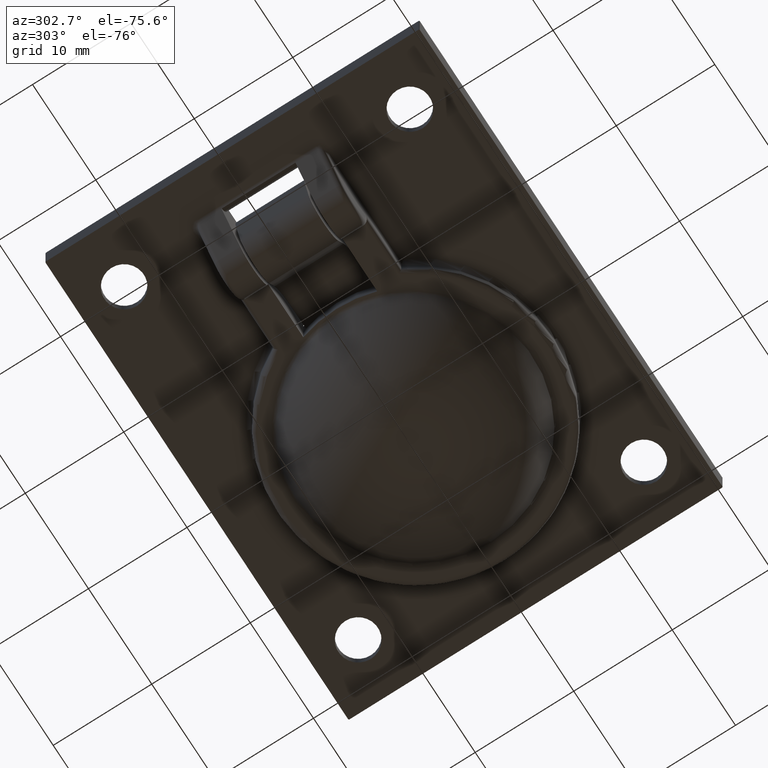
[diagram: clean part render]
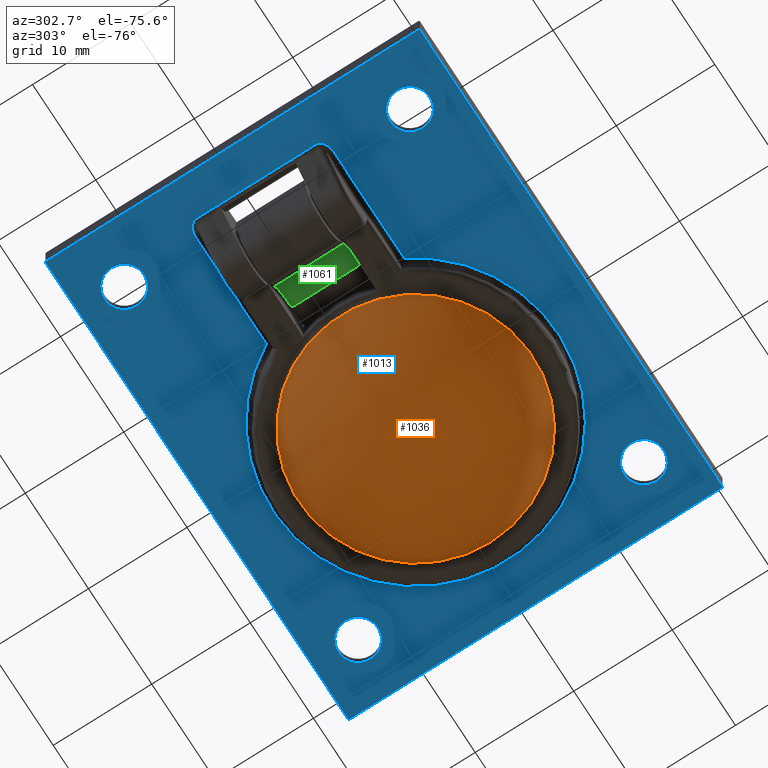
[diagram: same view with three faces highlighted in distinct colors, each labeled with its STEP entity id]
A machine part, auxiliary view with three faces highlighted in distinct colors.
Their STEP definitions:

[orange] entity #1036 — the highlighted spherical surface has radius 13.35 mm.
#25=SPHERICAL_SURFACE('',#1137,13.35);
#127=FACE_OUTER_BOUND('',#198,.T.);
#198=EDGE_LOOP('',(#825));
#426=CIRCLE('',#1136,11.8641822306835);
#511=VERTEX_POINT('',#1817);
#635=EDGE_CURVE('',#511,#511,#426,.T.);
#825=ORIENTED_EDGE('',*,*,#635,.F.);
#1036=ADVANCED_FACE('',(#127),#25,.T.);
#1136=AXIS2_PLACEMENT_3D('',#1818,#1365,#1366);
#1137=AXIS2_PLACEMENT_3D('',#1819,#1367,#1368);
#1365=DIRECTION('center_axis',(0.,0.,1.));
#1366=DIRECTION('ref_axis',(-1.,1.83697019872103E-16,0.));
#1367=DIRECTION('center_axis',(6.65302187041292E-17,0.,1.));
#1368=DIRECTION('ref_axis',(1.,0.,0.));
#1817=CARTESIAN_POINT('',(16.8641822306836,-7.26471639665376E-16,-2.27075812274368));
#1818=CARTESIAN_POINT('Origin',(5.00000000000001,0.,-2.27075812274368));
#1819=CARTESIAN_POINT('Origin',(5.00000000000001,0.,3.85));

[blue] entity #1013 — the highlighted planar face has unit normal (0, 0, 1).
#44=ELLIPSE('',#1092,1.31582577148024,1.);
#45=ELLIPSE('',#1094,1.31582577148024,1.);
#48=FACE_BOUND('',#169,.T.);
#49=FACE_BOUND('',#170,.T.);
#50=FACE_BOUND('',#171,.T.);
#51=FACE_BOUND('',#172,.T.);
#52=FACE_BOUND('',#173,.T.);
#81=PLANE('',#1084);
#104=FACE_OUTER_BOUND('',#168,.T.);
#168=EDGE_LOOP('',(#713,#714,#715,#716,#717,#718,#719,#720));
#169=EDGE_LOOP('',(#721));
#170=EDGE_LOOP('',(#722));
#171=EDGE_LOOP('',(#723));
#172=EDGE_LOOP('',(#724));
#173=EDGE_LOOP('',(#725,#726,#727,#728,#729,#730));
#271=LINE('',#1564,#339);
#272=LINE('',#1568,#340);
#273=LINE('',#1572,#341);
#274=LINE('',#1575,#342);
#275=LINE('',#1588,#343);
#276=LINE('',#1592,#344);
#277=LINE('',#1595,#345);
#339=VECTOR('',#1235,47.8);
#340=VECTOR('',#1238,37.8);
#341=VECTOR('',#1241,47.8);
#342=VECTOR('',#1244,37.8);
#343=VECTOR('',#1255,11.2160531222347);
#344=VECTOR('',#1258,11.2160531222347);
#345=VECTOR('',#1261,12.);
#398=CIRCLE('',#1083,0.1);
#399=CIRCLE('',#1085,0.1);
#400=CIRCLE('',#1086,0.1);
#401=CIRCLE('',#1087,0.1);
#402=CIRCLE('',#1088,2.);
#403=CIRCLE('',#1089,2.);
#404=CIRCLE('',#1090,2.);
#405=CIRCLE('',#1091,2.);
#406=CIRCLE('',#1093,14.5);
#468=VERTEX_POINT('',#1557);
#469=VERTEX_POINT('',#1559);
#470=VERTEX_POINT('',#1563);
#471=VERTEX_POINT('',#1565);
#472=VERTEX_POINT('',#1567);
#473=VERTEX_POINT('',#1569);
#474=VERTEX_POINT('',#1571);
#475=VERTEX_POINT('',#1573);
#476=VERTEX_POINT('',#1576);
#477=VERTEX_POINT('',#1578);
#478=VERTEX_POINT('',#1580);
#479=VERTEX_POINT('',#1582);
#480=VERTEX_POINT('',#1584);
#481=VERTEX_POINT('',#1585);
#482=VERTEX_POINT('',#1587);
#483=VERTEX_POINT('',#1589);
#484=VERTEX_POINT('',#1591);
#485=VERTEX_POINT('',#1593);
#568=EDGE_CURVE('',#468,#469,#398,.T.);
#570=EDGE_CURVE('',#470,#468,#271,.T.);
#571=EDGE_CURVE('',#471,#470,#399,.T.);
#572=EDGE_CURVE('',#472,#471,#272,.T.);
#573=EDGE_CURVE('',#473,#472,#400,.T.);
#574=EDGE_CURVE('',#474,#473,#273,.T.);
#575=EDGE_CURVE('',#475,#474,#401,.T.);
#576=EDGE_CURVE('',#469,#475,#274,.T.);
#577=EDGE_CURVE('',#476,#476,#402,.T.);
#578=EDGE_CURVE('',#477,#477,#403,.T.);
#579=EDGE_CURVE('',#478,#478,#404,.T.);
#580=EDGE_CURVE('',#479,#479,#405,.T.);
#581=EDGE_CURVE('',#480,#481,#44,.T.);
#582=EDGE_CURVE('',#482,#480,#275,.T.);
#583=EDGE_CURVE('',#483,#482,#406,.T.);
#584=EDGE_CURVE('',#484,#483,#276,.T.);
#585=EDGE_CURVE('',#485,#484,#45,.T.);
#586=EDGE_CURVE('',#481,#485,#277,.T.);
#713=ORIENTED_EDGE('',*,*,#568,.F.);
#714=ORIENTED_EDGE('',*,*,#570,.F.);
#715=ORIENTED_EDGE('',*,*,#571,.F.);
#716=ORIENTED_EDGE('',*,*,#572,.F.);
#717=ORIENTED_EDGE('',*,*,#573,.F.);
#718=ORIENTED_EDGE('',*,*,#574,.F.);
#719=ORIENTED_EDGE('',*,*,#575,.F.);
#720=ORIENTED_EDGE('',*,*,#576,.F.);
#721=ORIENTED_EDGE('',*,*,#577,.T.);
#722=ORIENTED_EDGE('',*,*,#578,.T.);
#723=ORIENTED_EDGE('',*,*,#579,.T.);
#724=ORIENTED_EDGE('',*,*,#580,.T.);
#725=ORIENTED_EDGE('',*,*,#581,.F.);
#726=ORIENTED_EDGE('',*,*,#582,.F.);
#727=ORIENTED_EDGE('',*,*,#583,.F.);
#728=ORIENTED_EDGE('',*,*,#584,.F.);
#729=ORIENTED_EDGE('',*,*,#585,.F.);
#730=ORIENTED_EDGE('',*,*,#586,.F.);
#1013=ADVANCED_FACE('',(#104,#48,#49,#50,#51,#52),#81,.F.);
#1083=AXIS2_PLACEMENT_3D('',#1560,#1230,#1231);
#1084=AXIS2_PLACEMENT_3D('',#1562,#1233,#1234);
#1085=AXIS2_PLACEMENT_3D('',#1566,#1236,#1237);
#1086=AXIS2_PLACEMENT_3D('',#1570,#1239,#1240);
#1087=AXIS2_PLACEMENT_3D('',#1574,#1242,#1243);
#1088=AXIS2_PLACEMENT_3D('',#1577,#1245,#1246);
#1089=AXIS2_PLACEMENT_3D('',#1579,#1247,#1248);
#1090=AXIS2_PLACEMENT_3D('',#1581,#1249,#1250);
#1091=AXIS2_PLACEMENT_3D('',#1583,#1251,#1252);
#1092=AXIS2_PLACEMENT_3D('',#1586,#1253,#1254);
#1093=AXIS2_PLACEMENT_3D('',#1590,#1256,#1257);
#1094=AXIS2_PLACEMENT_3D('',#1594,#1259,#1260);
#1230=DIRECTION('center_axis',(0.,0.,1.));
#1231=DIRECTION('ref_axis',(-0.707106781186548,0.707106781186548,0.));
#1233=DIRECTION('center_axis',(0.,0.,1.));
#1234=DIRECTION('ref_axis',(1.,0.,0.));
#1235=DIRECTION('',(-1.,-9.25185853854297E-17,0.));
#1236=DIRECTION('center_axis',(0.,0.,1.));
#1237=DIRECTION('ref_axis',(0.707106781186548,0.707106781186548,0.));
#1238=DIRECTION('',(-2.3373116307898E-16,1.,0.));
#1239=DIRECTION('center_axis',(0.,0.,1.));
#1240=DIRECTION('ref_axis',(0.707106781186548,-0.707106781186548,0.));
#1241=DIRECTION('',(1.,-4.62592926927149E-17,0.));
#1242=DIRECTION('center_axis',(0.,0.,1.));
#1243=DIRECTION('ref_axis',(-0.7071067811865,-0.707106781186595,0.));
#1244=DIRECTION('',(3.50596744618471E-16,-1.,0.));
#1245=DIRECTION('center_axis',(0.,0.,1.));
#1246=DIRECTION('ref_axis',(1.,0.,0.));
#1247=DIRECTION('center_axis',(0.,0.,1.));
#1248=DIRECTION('ref_axis',(1.,0.,0.));
#1249=DIRECTION('center_axis',(0.,0.,1.));
#1250=DIRECTION('ref_axis',(1.,0.,0.));
#1251=DIRECTION('center_axis',(0.,0.,1.));
#1252=DIRECTION('ref_axis',(1.,0.,0.));
#1253=DIRECTION('center_axis',(0.,0.,-1.));
#1254=DIRECTION('ref_axis',(-1.,1.58202416785802E-16,0.));
#1255=DIRECTION('',(-1.,0.,0.));
#1256=DIRECTION('center_axis',(0.,0.,-1.));
#1257=DIRECTION('ref_axis',(1.,0.,0.));
#1258=DIRECTION('',(1.,0.,0.));
#1259=DIRECTION('center_axis',(0.,0.,-1.));
#1260=DIRECTION('ref_axis',(-1.,0.,0.));
#1261=DIRECTION('',(0.,1.,0.));
#1557=CARTESIAN_POINT('',(-23.9,19.,0.));
#1559=CARTESIAN_POINT('',(-24.,18.9,0.));
#1560=CARTESIAN_POINT('Origin',(-23.9,18.9,0.));
#1562=CARTESIAN_POINT('Origin',(1.54914840645371E-15,3.58886047495109E-15,
0.));
#1563=CARTESIAN_POINT('',(23.9,19.,0.));
#1564=CARTESIAN_POINT('',(24.,19.,0.));
#1565=CARTESIAN_POINT('',(24.,18.9,0.));
#1566=CARTESIAN_POINT('Origin',(23.9,18.9,0.));
#1567=CARTESIAN_POINT('',(24.,-18.9,0.));
#1568=CARTESIAN_POINT('',(24.,-19.,0.));
#1569=CARTESIAN_POINT('',(23.9,-19.,0.));
#1570=CARTESIAN_POINT('Origin',(23.9,-18.9,0.));
#1571=CARTESIAN_POINT('',(-23.9,-19.,0.));
#1572=CARTESIAN_POINT('',(-24.,-19.,0.));
#1573=CARTESIAN_POINT('',(-24.,-18.9,0.));
#1574=CARTESIAN_POINT('Origin',(-23.9,-18.9,0.));
#1575=CARTESIAN_POINT('',(-24.,19.,0.));
#1576=CARTESIAN_POINT('',(16.5,-14.5,0.));
#1577=CARTESIAN_POINT('Origin',(18.5,-14.5,0.));
#1578=CARTESIAN_POINT('',(-20.5,14.5,0.));
#1579=CARTESIAN_POINT('Origin',(-18.5,14.5,0.));
#1580=CARTESIAN_POINT('',(-20.5,-14.5,0.));
#1581=CARTESIAN_POINT('Origin',(-18.5,-14.5,0.));
#1582=CARTESIAN_POINT('',(16.5,14.5,0.));
#1583=CARTESIAN_POINT('Origin',(18.5,14.5,0.));
#1584=CARTESIAN_POINT('',(-18.914478221435,-7.,0.));
#1585=CARTESIAN_POINT('',(-20.2303039929153,-6.,0.));
#1586=CARTESIAN_POINT('Origin',(-18.914478221435,-6.,0.));
#1587=CARTESIAN_POINT('',(-7.69842509920029,-7.,0.));
#1588=CARTESIAN_POINT('',(-9.02743976754594,-7.,0.));
#1589=CARTESIAN_POINT('',(-7.69842509920029,7.00000000000001,0.));
#1590=CARTESIAN_POINT('Origin',(5.,0.,0.));
#1591=CARTESIAN_POINT('',(-18.914478221435,7.,0.));
#1592=CARTESIAN_POINT('',(-9.02743976754594,7.,0.));
#1593=CARTESIAN_POINT('',(-20.2303039929153,6.,0.));
#1594=CARTESIAN_POINT('Origin',(-18.914478221435,6.,0.));
#1595=CARTESIAN_POINT('',(-20.2303039929153,1.79443023747554E-15,0.));

[green] entity #1061 — the highlighted cylindrical surface (edge-blend (fillet) strip) has radius 3 mm, axis along (0, 1, 0).
#152=FACE_OUTER_BOUND('',#241,.T.);
#241=EDGE_LOOP('',(#927,#928,#929,#930));
#313=LINE('',#1922,#381);
#314=LINE('',#1925,#382);
#381=VECTOR('',#1469,7.);
#382=VECTOR('',#1472,7.);
#444=CIRCLE('',#1180,3.);
#445=CIRCLE('',#1181,3.);
#534=VERTEX_POINT('',#1918);
#535=VERTEX_POINT('',#1919);
#536=VERTEX_POINT('',#1921);
#537=VERTEX_POINT('',#1923);
#669=EDGE_CURVE('',#534,#535,#444,.T.);
#670=EDGE_CURVE('',#535,#536,#313,.T.);
#671=EDGE_CURVE('',#536,#537,#445,.T.);
#672=EDGE_CURVE('',#537,#534,#314,.T.);
#927=ORIENTED_EDGE('',*,*,#669,.T.);
#928=ORIENTED_EDGE('',*,*,#670,.T.);
#929=ORIENTED_EDGE('',*,*,#671,.T.);
#930=ORIENTED_EDGE('',*,*,#672,.T.);
#1005=CYLINDRICAL_SURFACE('',#1179,3.);
#1061=ADVANCED_FACE('',(#152),#1005,.F.);
#1179=AXIS2_PLACEMENT_3D('',#1917,#1465,#1466);
#1180=AXIS2_PLACEMENT_3D('',#1920,#1467,#1468);
#1181=AXIS2_PLACEMENT_3D('',#1924,#1470,#1471);
#1465=DIRECTION('center_axis',(0.,1.,0.));
#1466=DIRECTION('ref_axis',(-0.532658420935078,0.,0.846330317669732));
#1467=DIRECTION('center_axis',(0.,-1.,0.));
#1468=DIRECTION('ref_axis',(-0.532658420935078,0.,0.846330317669732));
#1469=DIRECTION('',(0.,1.,0.));
#1470=DIRECTION('center_axis',(0.,1.,0.));
#1471=DIRECTION('ref_axis',(-0.532658420935078,0.,0.846330317669732));
#1472=DIRECTION('',(0.,-1.,0.));
#1917=CARTESIAN_POINT('Origin',(-9.13967753464741,0.,-2.5));
#1918=CARTESIAN_POINT('',(-9.13967753464741,-3.5,0.5));
#1919=CARTESIAN_POINT('',(-11.8445073582441,-3.5,-1.20234996035831));
#1920=CARTESIAN_POINT('Origin',(-9.13967753464741,-3.5,-2.5));
#1921=CARTESIAN_POINT('',(-11.8445073582441,3.5,-1.20234996035831));
#1922=CARTESIAN_POINT('',(-11.8445073582441,0.,-1.2023499603583));
#1923=CARTESIAN_POINT('',(-9.13967753464741,3.5,0.5));
#1924=CARTESIAN_POINT('Origin',(-9.13967753464741,3.5,-2.5));
#1925=CARTESIAN_POINT('',(-9.13967753464741,0.,0.5));